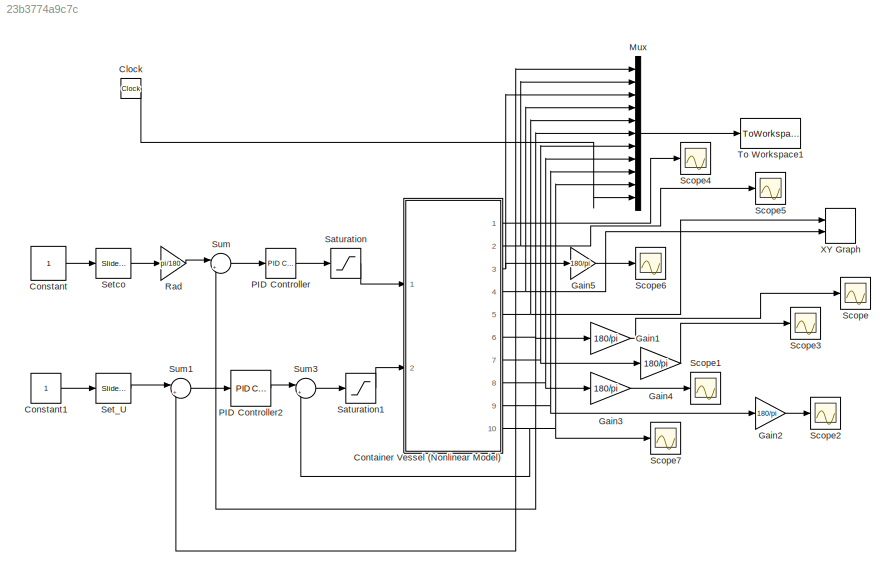
MODEL slx_23b3774a9c7c
KIND model
CONFIG AbsTol = auto
CONFIG EnableMultiTasking = on
CONFIG FixedStep = 0.1
CONFIG MaxStep = auto
CONFIG MinStep = auto
CONFIG RelTol = 1e-3
CONFIG SampleTimeConstraint = Unconstrained
CONFIG SolverName = ode4
CONFIG StartTime = 0.0
CONFIG StopTime = 600
BLOCK [Clock] Clock
BLOCK [Constant] Constant
BLOCK [Constant] Constant1
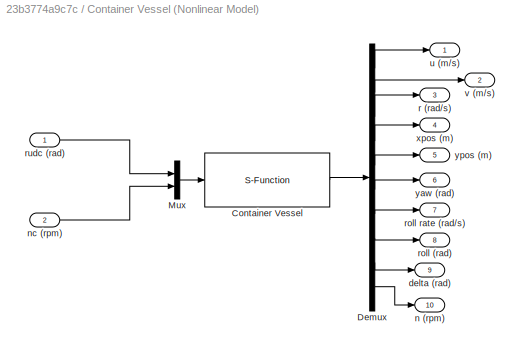
BLOCK [SubSystem] Container Vessel (Nonlinear Model)
  Ports = [2, 10]
  RequestExecContextInheritance = off
BLOCK [S-Function] Container Vessel (Nonlinear Model)/Container Vessel
  EnableBusSupport = off
  FunctionName = ContainerModel
  Ports = [1, 1]
  SFcnIsStateOwnerBlock = off
  SFunctionDeploymentMode = off
BLOCK [Demux] Container Vessel (Nonlinear Model)/Demux
  Outputs = 10
  Ports = [1, 10]
BLOCK [Mux] Container Vessel (Nonlinear Model)/Mux
  DisplayOption = bar
  Inputs = 2
  Ports = [2, 1]
BLOCK [Outport] Container Vessel (Nonlinear Model)/delta (rad)
  Port = 9
BLOCK [Outport] Container Vessel (Nonlinear Model)/n (rpm)
  Port = 10
BLOCK [Inport] Container Vessel (Nonlinear Model)/nc (rpm)
  Port = 2
BLOCK [Outport] Container Vessel (Nonlinear Model)/r (rad//s)
  Port = 3
BLOCK [Outport] Container Vessel (Nonlinear Model)/roll (rad)
  Port = 8
BLOCK [Outport] Container Vessel (Nonlinear Model)/roll rate (rad//s)
  Port = 7
BLOCK [Inport] Container Vessel (Nonlinear Model)/rudc (rad)
BLOCK [Outport] Container Vessel (Nonlinear Model)/u (m//s)
BLOCK [Outport] Container Vessel (Nonlinear Model)/v (m//s)
  Port = 2
BLOCK [Outport] Container Vessel (Nonlinear Model)/xpos (m)
  Port = 4
BLOCK [Outport] Container Vessel (Nonlinear Model)/yaw (rad)
  Port = 6
BLOCK [Outport] Container Vessel (Nonlinear Model)/ypos (m)
  Port = 5
BLOCK [Gain] Gain1
  Gain = 180/pi
BLOCK [Gain] Gain2
  Gain = 180/pi
BLOCK [Gain] Gain3
  Gain = 180/pi
BLOCK [Gain] Gain4
  Gain = 180/pi
BLOCK [Gain] Gain5
  Gain = 180/pi
BLOCK [Mux] Mux
  DisplayOption = bar
  Inputs = 11
  Ports = [11, 1]
BLOCK [Reference] PID Controller  REF=simulink_need_slupdate/PID Controller
  Ports = [1, 1]
  SourceBlock = simulink_need_slupdate/PID Controller
  SourceProductBaseCode = SL
  SourceType = PID Controller
BLOCK [Reference] PID Controller2  REF=slpidlib/PID Controller
  Ports = [1, 1]
  SourceBlock = slpidlib/PID Controller
  SourceProductBaseCode = SL
  SourceType = PID 1dof
BLOCK [Gain] Rad
  Gain = pi/180
  OutDataTypeStr = Inherit: Same as input
  ParamDataTypeStr = Inherit: Same as input
  SaturateOnIntegerOverflow = on
BLOCK [Saturate] Saturation
  LowerLimit = -10*pi/180
  UpperLimit = 10*pi/180
BLOCK [Saturate] Saturation1
  LowerLimit = 1
  UpperLimit = 200
BLOCK [Scope] Scope
  Floating = off
  NumInputPorts = 1
  Ports = [1]
  ScopeSpecificationString = Simulink.scopes.TimeScopeBlockCfg('CurrentConfiguration', extmgr.ConfigurationSet(extmgr.Configuration('Core','General UI',true),extmgr.Configuration('Core','Source UI',true),extmgr.Configuration('Sources','WiredSimulink',true,'DataLoggingSaveFormat','StructureWithTime','DataLoggingLimitDataPoints',true,'DataLoggingDecimation','1','DataLoggingDecimateData',true),extmgr.Configuration('Visuals','Tim...<+1593ch>
BLOCK [Scope] Scope1
  Floating = off
  NumInputPorts = 1
  Ports = [1]
  ScopeSpecificationString = Simulink.scopes.TimeScopeBlockCfg('CurrentConfiguration', extmgr.ConfigurationSet(extmgr.Configuration('Core','General UI',true),extmgr.Configuration('Core','Source UI',true),extmgr.Configuration('Sources','WiredSimulink',true,'DataLoggingVariableName','ScopeData1','DataLoggingSaveFormat','StructureWithTime','DataLoggingLimitDataPoints',true,'DataLoggingDecimation','1','DataLoggingDecimateData',tr...<+1628ch>
BLOCK [Scope] Scope2
  Floating = off
  NumInputPorts = 1
  Ports = [1]
  ScopeSpecificationString = Simulink.scopes.TimeScopeBlockCfg('CurrentConfiguration', extmgr.ConfigurationSet(extmgr.Configuration('Core','General UI',true),extmgr.Configuration('Core','Source UI',true),extmgr.Configuration('Sources','WiredSimulink',true,'DataLoggingVariableName','ScopeData2','DataLoggingSaveFormat','StructureWithTime','DataLoggingLimitDataPoints',true,'DataLoggingDecimation','1','DataLoggingDecimateData',tr...<+911ch>
BLOCK [Scope] Scope3
  Floating = off
  NumInputPorts = 1
  Ports = [1]
  ScopeSpecificationString = Simulink.scopes.TimeScopeBlockCfg('CurrentConfiguration', extmgr.ConfigurationSet(extmgr.Configuration('Core','General UI',true),extmgr.Configuration('Core','Source UI',true),extmgr.Configuration('Sources','WiredSimulink',true,'DataLoggingVariableName','ScopeData3','DataLoggingSaveFormat','StructureWithTime','DataLoggingLimitDataPoints',true,'DataLoggingDecimation','1','DataLoggingDecimateData',tr...<+911ch>
BLOCK [Scope] Scope4
  Floating = off
  NumInputPorts = 1
  Ports = [1]
  ScopeSpecificationString = Simulink.scopes.TimeScopeBlockCfg('CurrentConfiguration', extmgr.ConfigurationSet(extmgr.Configuration('Core','General UI',true),extmgr.Configuration('Core','Source UI',true),extmgr.Configuration('Sources','WiredSimulink',true,'DataLoggingVariableName','ScopeData4','DataLoggingSaveFormat','StructureWithTime','DataLoggingLimitDataPoints',true,'DataLoggingDecimation','1','DataLoggingDecimateData',tr...<+1694ch>
BLOCK [Scope] Scope5
  Floating = off
  NumInputPorts = 1
  Ports = [1]
  ScopeSpecificationString = Simulink.scopes.TimeScopeBlockCfg('CurrentConfiguration', extmgr.ConfigurationSet(extmgr.Configuration('Core','General UI',true),extmgr.Configuration('Core','Source UI',true),extmgr.Configuration('Sources','WiredSimulink',true,'DataLoggingVariableName','ScopeData5','DataLoggingSaveFormat','StructureWithTime','DataLoggingLimitDataPoints',true,'DataLoggingDecimation','1','DataLoggingDecimateData',tr...<+1682ch>
BLOCK [Scope] Scope6
  Floating = off
  NumInputPorts = 1
  Ports = [1]
  ScopeSpecificationString = Simulink.scopes.TimeScopeBlockCfg('CurrentConfiguration', extmgr.ConfigurationSet(extmgr.Configuration('Core','General UI',true),extmgr.Configuration('Core','Source UI',true),extmgr.Configuration('Sources','WiredSimulink',true,'DataLoggingVariableName','ScopeData6','DataLoggingSaveFormat','StructureWithTime','DataLoggingLimitDataPoints',true,'DataLoggingDecimation','1','DataLoggingDecimateData',tr...<+1663ch>
BLOCK [Scope] Scope7
  Floating = off
  NumInputPorts = 1
  Ports = [1]
  ScopeSpecificationString = Simulink.scopes.TimeScopeBlockCfg('CurrentConfiguration', extmgr.ConfigurationSet(extmgr.Configuration('Core','General UI',true),extmgr.Configuration('Core','Source UI',true),extmgr.Configuration('Sources','WiredSimulink',true,'DataLoggingVariableName','ScopeData7','DataLoggingSaveFormat','StructureWithTime','DataLoggingLimitDataPoints',true,'DataLoggingDecimation','1','DataLoggingDecimateData',tr...<+911ch>
BLOCK [Reference] Set_U  REF=simulink/Math
Operations/Slider
Gain
  Ports = [1, 1]
  SourceBlock = simulink/Math\nOperations/Slider\nGain
  SourceProductBaseCode = SL
  SourceType = Slider Gain
BLOCK [Reference] Setco  REF=simulink/Math
Operations/Slider
Gain
  Ports = [1, 1]
  SourceBlock = simulink/Math\nOperations/Slider\nGain
  SourceProductBaseCode = SL
  SourceType = Slider Gain
BLOCK [Sum] Sum
  Inputs = |+-
  Ports = [2, 1]
BLOCK [Sum] Sum1
  Inputs = |+-
  Ports = [2, 1]
BLOCK [Sum] Sum3
  Inputs = |++
  Ports = [2, 1]
BLOCK [ToWorkspace] To Workspace1
  Decimation = 2
  MaxDataPoints = inf
  Ports = [1]
  SampleTime = -1
  VariableName = data
BLOCK [Record] XY Graph
  CompatibilityTag = XY
  FileSettingsInternal = {"entries":[{"content":{"excelSettings":{"content":{},"type":"Streamout.ExcelSettings"}},"type":"Streamout.FileSettingStorage","uuid":"ed4bb2cf-d8da-49ff-9710-cf5ea79b5470"}],"packageUris":["http://schema.mathworks.com/mf0/streamout_blocks/R2020a"],"version":"1.0"}
  Layout = [1 1]
  Ports = [2]
  SignalsInternal = {"entries":[{"content":{"signals":[{"content":{"blockPath":["ContainerVesselPIDspeedControl/XY Graph"],"channel":[],"dimensions":[1],"domain":"ContainerVesselPIDspeedControl/XY Graph","lineColor":"#a2142f","plots":[1],"port":1,"sid":[""],"signalID":3284,"signalName":"Container Vessel\n(Nonlinear Model):5"},"type":"RecordBlkView.Signal","uuid":"d79fec90-6445-4035-8097-5b2f5eabe7ed"},{"content":{"bl...<+511ch>
  VisualizationBindings = {"xyplotplugin":{"info":[{"series":[{"bindingParametersList":[{"parameter":"X-Axis","signalID":3284,"signalName":"Container Vessel\n(Nonlinear Model):5"},{"parameter":"Y-Axis","signalID":3288,"signalName":"Container Vessel\n(Nonlinear Model):4"}],"seriesID":19158}],"subplotID":1}]}}
  st = -1
LINE Clock:1 -> Mux:11
LINE Constant1:1 -> Set_U:1
LINE Constant:1 -> Setco:1
LINE Container Vessel (Nonlinear Model)/Container Vessel:1 -> Container Vessel (Nonlinear Model)/Demux:1
LINE Container Vessel (Nonlinear Model)/Demux:1 -> Container Vessel (Nonlinear Model)/u (m//s):1
LINE Container Vessel (Nonlinear Model)/Demux:10 -> Container Vessel (Nonlinear Model)/n (rpm):1
LINE Container Vessel (Nonlinear Model)/Demux:2 -> Container Vessel (Nonlinear Model)/v (m//s):1
LINE Container Vessel (Nonlinear Model)/Demux:3 -> Container Vessel (Nonlinear Model)/r (rad//s):1
LINE Container Vessel (Nonlinear Model)/Demux:4 -> Container Vessel (Nonlinear Model)/xpos (m):1
LINE Container Vessel (Nonlinear Model)/Demux:5 -> Container Vessel (Nonlinear Model)/ypos (m):1
LINE Container Vessel (Nonlinear Model)/Demux:6 -> Container Vessel (Nonlinear Model)/yaw (rad):1
LINE Container Vessel (Nonlinear Model)/Demux:7 -> Container Vessel (Nonlinear Model)/roll rate (rad//s):1
LINE Container Vessel (Nonlinear Model)/Demux:8 -> Container Vessel (Nonlinear Model)/roll (rad):1
LINE Container Vessel (Nonlinear Model)/Demux:9 -> Container Vessel (Nonlinear Model)/delta (rad):1
LINE Container Vessel (Nonlinear Model)/Mux:1 -> Container Vessel (Nonlinear Model)/Container Vessel:1
LINE Container Vessel (Nonlinear Model)/nc (rpm):1 -> Container Vessel (Nonlinear Model)/Mux:2
LINE Container Vessel (Nonlinear Model)/rudc (rad):1 -> Container Vessel (Nonlinear Model)/Mux:1
NET Container Vessel (Nonlinear Model):1 -> Mux:1, Scope4:1, Sum1:2
NET Container Vessel (Nonlinear Model):10 -> Mux:10, Scope7:1, Sum3:2
NET Container Vessel (Nonlinear Model):2 -> Mux:2, Scope5:1
NET Container Vessel (Nonlinear Model):3 -> Gain5:1, Mux:3
NET Container Vessel (Nonlinear Model):4 -> Mux:4, XY Graph:2
NET Container Vessel (Nonlinear Model):5 -> Mux:5, XY Graph:1
NET Container Vessel (Nonlinear Model):6 -> Gain1:1, Mux:6, Sum:2
NET Container Vessel (Nonlinear Model):7 -> Gain4:1, Mux:7
NET Container Vessel (Nonlinear Model):8 -> Gain3:1, Mux:8
NET Container Vessel (Nonlinear Model):9 -> Gain2:1, Mux:9
LINE Gain1:1 -> Scope:1
LINE Gain2:1 -> Scope2:1
LINE Gain3:1 -> Scope1:1
LINE Gain4:1 -> Scope3:1
LINE Gain5:1 -> Scope6:1
LINE Mux:1 -> To Workspace1:1
LINE PID Controller2:1 -> Sum3:1
LINE PID Controller:1 -> Saturation:1
LINE Rad:1 -> Sum:1
LINE Saturation1:1 -> Container Vessel (Nonlinear Model):2
LINE Saturation:1 -> Container Vessel (Nonlinear Model):1
LINE Set_U:1 -> Sum1:1
LINE Setco:1 -> Rad:1
LINE Sum1:1 -> PID Controller2:1
LINE Sum3:1 -> Saturation1:1
LINE Sum:1 -> PID Controller:1
note: NET lines group one-source signal fan-out (src -> all destinations, sorted); 1:1 wires keep LINE
